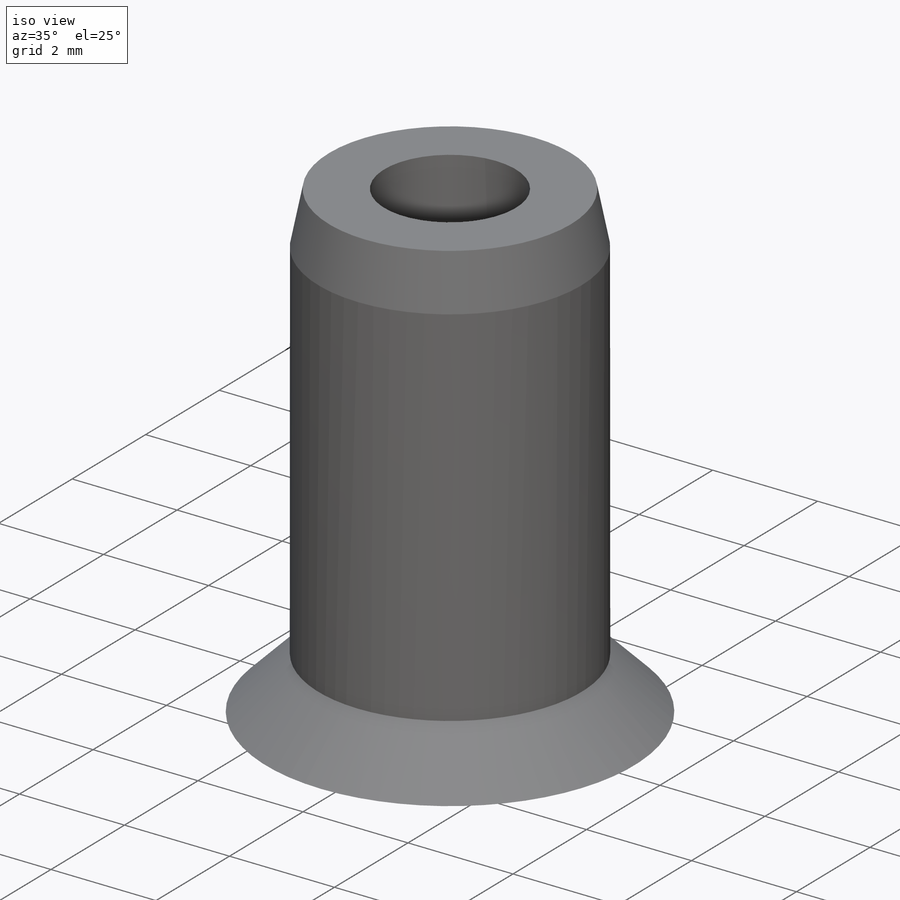
[diagram: iso view]
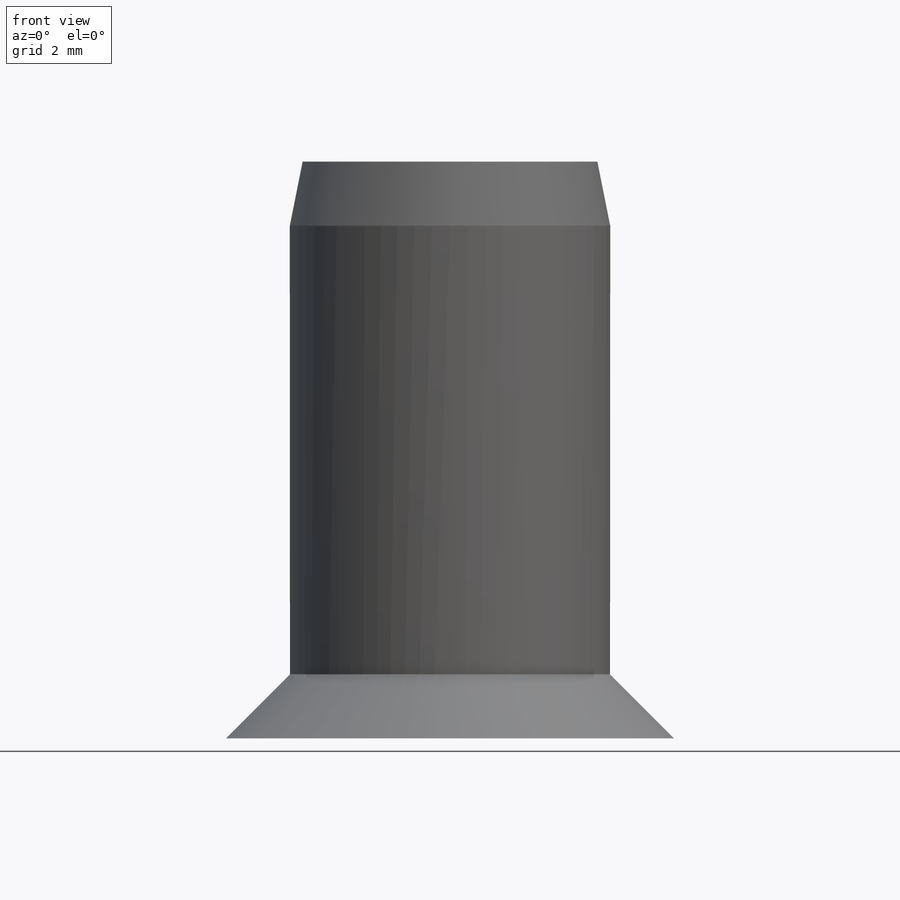
[diagram: front view]
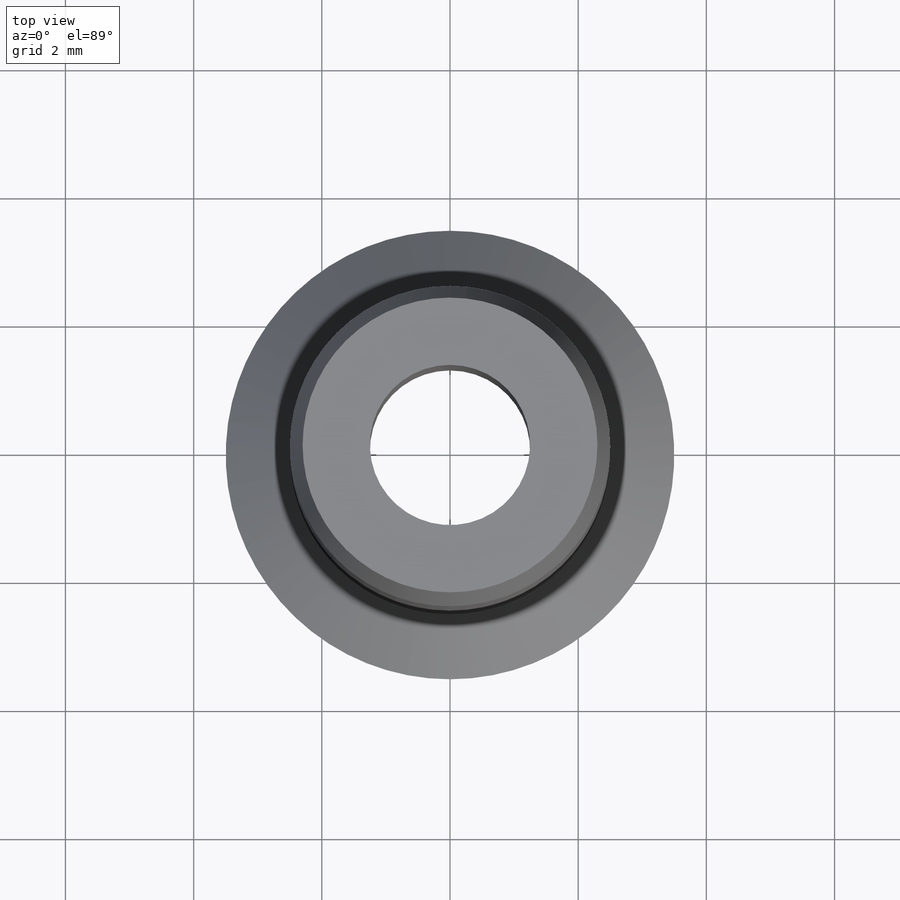
[diagram: top view]
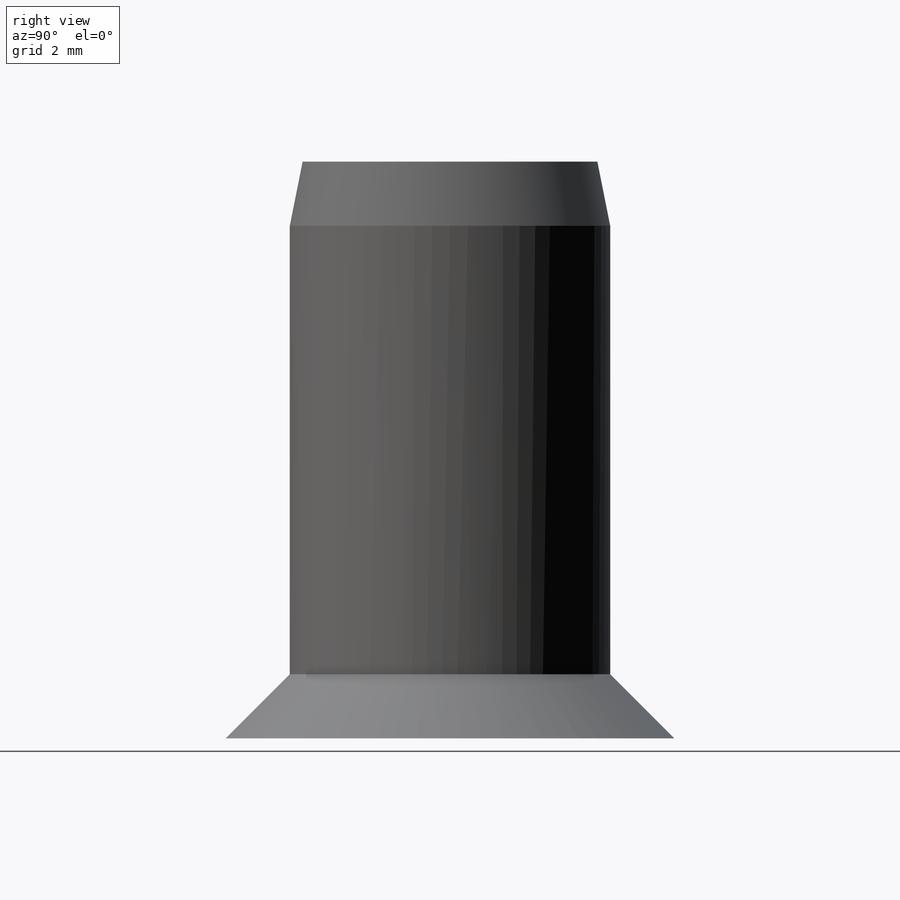
[diagram: right view]
SOLIDWORKS PART (.sldprt)
format: sldprt  version: not decoded by parser v0  size: 204,800 bytes
history: native  units: mm
features: sketch x5, plane x3, extrude x2, chamfer x2, material x1, cut_extrude x1, hole x1, thread x1 (+9 scaffold rows collapsed)
feature tree (25):
  scaffold x9  (default folders/planes/origin — collapsed)
  material  "Aço inoxidável (ferrítico)"
  plane  "Plano frontal"
  plane  "Plano superior"
  plane  "Plano direito"
  sketch  "Esboço1"  dims[D1=7.0mm D2=3.2mm D3=5.0mm]
  extrude  "Ressalto-extrusão1"  Depth=1mm
  extrude  "Ressalto-extrusão2"  [1 undecoded]
  sketch  "Esboço1<3>"  dims[D1=9.0mm]
  cut_extrude  "Corte-extrusão2"  [1 undecoded]
  sketch  "Esboço1<4>"  dims[D1=4.0mm]
  hole  "Furo roscado de M31"  Diameter=2.5mm Depth=5mm
  sketch  "Esboço5"
  sketch  "Esboço4"  dims[hole-wizard template sketch: 61 standard entries collapsed; hole parameters above]
  thread  "Rosca de furo3"  Diameter=3mm  [1 undecoded]
  chamfer  "Chanfro2"  Distance=1mm
  chamfer  "Chanfro4"  Distance=1mm Angle=45deg
decode coverage: 9 of 12 modeling features carry decoded parameters
note: ~ marks probable driven/reference dimensions
note: 3 parameter values undecoded
note: suppression state not decoded; provenance and decode notes live in map.json
